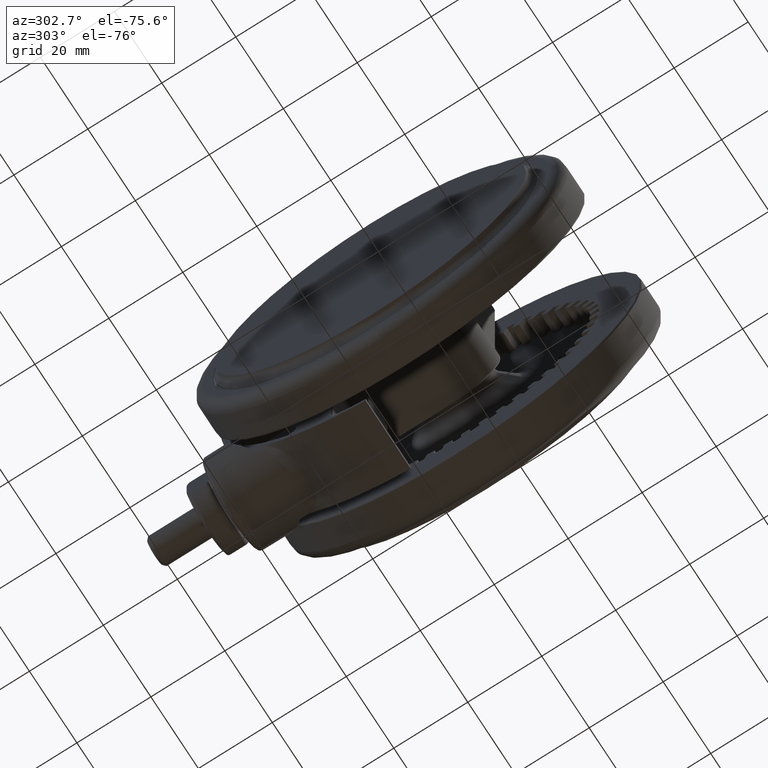
[diagram: clean part render]
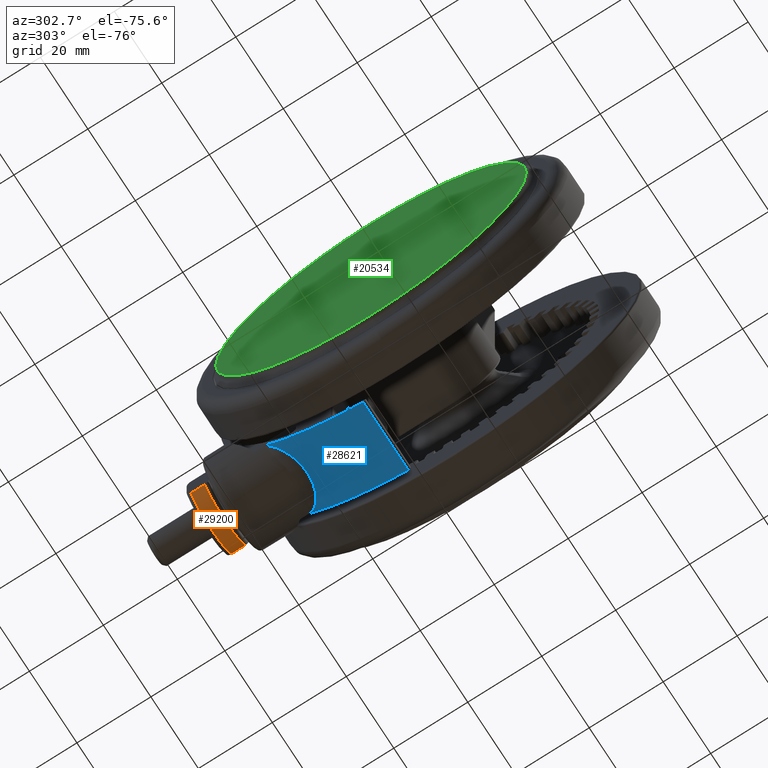
[diagram: same view with three faces highlighted in distinct colors, each labeled with its STEP entity id]
A machine part, auxiliary view with three faces highlighted in distinct colors.
Their STEP definitions:

[orange] entity #29200 — the highlighted cylindrical surface (partial cylindrical patch) has radius 10 mm, axis along (0, -1, -0).
#4144 = VECTOR ( 'NONE', #12329, 1000.000000000000000 ) ;
#4283 = EDGE_CURVE ( 'NONE', #16345, #5206, #19447, .T. ) ;
#4938 = VERTEX_POINT ( 'NONE', #10709 ) ;
#5206 = VERTEX_POINT ( 'NONE', #21849 ) ;
#5424 = DIRECTION ( 'NONE',  ( -1.161330068381886000E-016, 1.000000000000000000, 4.413456915335259200E-017 ) ) ;
#5435 = ORIENTED_EDGE ( 'NONE', *, *, #4283, .T. ) ;
#5532 = EDGE_CURVE ( 'NONE', #16345, #4938, #24069, .T. ) ;
#6679 = CARTESIAN_POINT ( 'NONE',  ( 29.26782687642636200, 58.90000000000003400, -32.80000000000001100 ) ) ;
#6965 = CARTESIAN_POINT ( 'NONE',  ( 29.26782687642636600, 55.10000000000003700, -15.80000000000000800 ) ) ;
#7800 = DIRECTION ( 'NONE',  ( 1.161330068381886000E-016, -1.000000000000000000, -4.413456915335259200E-017 ) ) ;
#8379 = AXIS2_PLACEMENT_3D ( 'NONE', #27087, #31989, #19534 ) ;
#10709 = CARTESIAN_POINT ( 'NONE',  ( 29.26782687642636200, 55.10000000000003700, -32.80000000000001100 ) ) ;
#10863 = CARTESIAN_POINT ( 'NONE',  ( 29.26782687642636200, 60.00000000000003600, -15.80000000000000800 ) ) ;
#12329 = DIRECTION ( 'NONE',  ( 1.161330068381886000E-016, -1.000000000000000000, -4.413456915335259200E-017 ) ) ;
#12578 = AXIS2_PLACEMENT_3D ( 'NONE', #22770, #7800, #25304 ) ;
#14046 = ORIENTED_EDGE ( 'NONE', *, *, #22563, .T. ) ;
#15128 = VERTEX_POINT ( 'NONE', #6965 ) ;
#16345 = VERTEX_POINT ( 'NONE', #6679 ) ;
#17266 = FACE_OUTER_BOUND ( 'NONE', #22916, .T. ) ;
#19447 = CIRCLE ( 'NONE', #12578, 10.00000000000000200 ) ;
#19534 = DIRECTION ( 'NONE',  ( 0.0000000000000000000, 0.0000000000000000000, 1.000000000000000000 ) ) ;
#20394 = CARTESIAN_POINT ( 'NONE',  ( 23.99999999999999300, 55.10000000000003000, -24.30000000000000800 ) ) ;
#21849 = CARTESIAN_POINT ( 'NONE',  ( 29.26782687642636200, 58.90000000000003400, -15.80000000000000800 ) ) ;
#22563 = EDGE_CURVE ( 'NONE', #15128, #4938, #28055, .T. ) ;
#22770 = CARTESIAN_POINT ( 'NONE',  ( 23.99999999999999300, 58.90000000000003400, -24.30000000000000800 ) ) ;
#22903 = DIRECTION ( 'NONE',  ( 0.0000000000000000000, 0.0000000000000000000, -1.000000000000000000 ) ) ;
#22916 = EDGE_LOOP ( 'NONE', ( #24525, #5435, #30853, #14046 ) ) ;
#23416 = VECTOR ( 'NONE', #28341, 1000.000000000000000 ) ;
#23696 = AXIS2_PLACEMENT_3D ( 'NONE', #20394, #5424, #22903 ) ;
#24069 = LINE ( 'NONE', #29796, #4144 ) ;
#24525 = ORIENTED_EDGE ( 'NONE', *, *, #5532, .F. ) ;
#25304 = DIRECTION ( 'NONE',  ( 0.0000000000000000000, 0.0000000000000000000, -1.000000000000000000 ) ) ;
#27087 = CARTESIAN_POINT ( 'NONE',  ( 23.99999999999999300, 60.00000000000003600, -24.30000000000000800 ) ) ;
#28055 = CIRCLE ( 'NONE', #23696, 10.00000000000000200 ) ;
#28341 = DIRECTION ( 'NONE',  ( 1.161330068381886000E-016, -1.000000000000000000, -4.413456915335259200E-017 ) ) ;
#28600 = EDGE_CURVE ( 'NONE', #5206, #15128, #30829, .T. ) ;
#29200 = ADVANCED_FACE ( 'NONE', ( #17266 ), #29756, .T. ) ;
#29756 = CYLINDRICAL_SURFACE ( 'NONE', #8379, 10.00000000000000000 ) ;
#29796 = CARTESIAN_POINT ( 'NONE',  ( 29.26782687642636200, 60.00000000000003600, -32.80000000000001100 ) ) ;
#30829 = LINE ( 'NONE', #10863, #23416 ) ;
#30853 = ORIENTED_EDGE ( 'NONE', *, *, #28600, .T. ) ;
#31989 = DIRECTION ( 'NONE',  ( 1.161330068381886000E-016, -1.000000000000000000, -4.413456915335259200E-017 ) ) ;

[blue] entity #28621 — the highlighted cylindrical surface (partial cylindrical patch) has radius 50 mm, axis along (-1, 0, 0).
#419 = EDGE_CURVE ( 'NONE', #23087, #8622, #7089, .T. ) ;
#472 = CARTESIAN_POINT ( 'NONE',  ( 48.63193178670999800, 11.61616161616162100, -14.80000000000001000 ) ) ;
#617 = CARTESIAN_POINT ( 'NONE',  ( 34.31274652645884500, 36.36806705901607700, -32.74709739643780900 ) ) ;
#735 = CARTESIAN_POINT ( 'NONE',  ( 36.89351901911391700, 33.74743635570671800, -29.10060216485628000 ) ) ;
#843 = CARTESIAN_POINT ( 'NONE',  ( 37.67419706141925700, 32.87332735489169300, -23.03472540845762900 ) ) ;
#951 = CARTESIAN_POINT ( 'NONE',  ( 36.99640792677027400, 33.63555748422316300, -19.75708853572382000 ) ) ;
#1056 = CARTESIAN_POINT ( 'NONE',  ( 34.76202998411583400, 35.93902763542729400, -16.23101237620990700 ) ) ;
#1091 = DIRECTION ( 'NONE',  ( -1.133627716667516000E-033, -4.413456915335259200E-017, 1.000000000000000000 ) ) ;
#3125 = CARTESIAN_POINT ( 'NONE',  ( 34.99755747381399100, 35.71197130703192400, -32.16728140512346800 ) ) ;
#3224 = CARTESIAN_POINT ( 'NONE',  ( 37.10962394447585000, 33.50939683336969200, -28.47004904455612400 ) ) ;
#3337 = CARTESIAN_POINT ( 'NONE',  ( 37.63603152371469200, 32.91700591041627200, -22.66235478231261200 ) ) ;
#3463 = CARTESIAN_POINT ( 'NONE',  ( 36.59406196103343900, 34.07202084390348100, -18.79451486379904100 ) ) ;
#3566 = CARTESIAN_POINT ( 'NONE',  ( 34.49252833873738000, 36.19767272266086200, -15.99937894774339900 ) ) ;
#4128 = CARTESIAN_POINT ( 'NONE',  ( -1.076946330834140200E-032, 1.315445069019957500E-015, -14.80000000000001000 ) ) ;
#4678 = CIRCLE ( 'NONE', #23794, 50.00000000000000000 ) ;
#4693 = ORIENTED_EDGE ( 'NONE', *, *, #25160, .F. ) ;
#5299 = EDGE_LOOP ( 'NONE', ( #29401, #12362, #4693, #20409 ) ) ;
#5524 = CARTESIAN_POINT ( 'NONE',  ( 32.91906115883919900, 37.63746394867963100, -33.55523827998324300 ) ) ;
#5632 = CARTESIAN_POINT ( 'NONE',  ( 35.58246277230635700, 35.12728478890685600, -31.48419502741859300 ) ) ;
#5749 = CARTESIAN_POINT ( 'NONE',  ( 37.23429283232788100, 33.37077632623412200, -28.04583883585296200 ) ) ;
#5861 = CARTESIAN_POINT ( 'NONE',  ( 37.58251479947406200, 32.97813730034763300, -22.22206409547560600 ) ) ;
#5959 = CARTESIAN_POINT ( 'NONE',  ( 36.33370454684151000, 34.34932155627424100, -18.28148012701952400 ) ) ;
#6070 = CARTESIAN_POINT ( 'NONE',  ( 34.38569670367532200, 36.29910101383204300, -15.91452357569802700 ) ) ;
#6644 = DIRECTION ( 'NONE',  ( 1.000000000000000000, 0.0000000000000000000, 0.0000000000000000000 ) ) ;
#7089 = B_SPLINE_CURVE_WITH_KNOTS ( 'NONE', 3,
 ( #8033, #15471, #5524, #25549, #10550, #28050, #13070, #30525, #15582, #617, #18088, #3125, #20620, #5632, #23118, #8163, #25637, #10663, #28150, #13180, #30629, #15689, #735, #18188, #3224, #20719, #5749, #23229, #8254, #25757, #10768, #28253, #13275, #30749, #15790, #843, #18300, #3337, #20824, #5861, #23332, #8359, #25862, #10883, #28354, #13386, #30854, #15907, #951, #18401, #3463, #20928, #5959, #23438, #8465, #25970, #10986, #28467, #13494, #30963, #16009, #1056, #18509, #3566, #21040, #6070, #23542, #8574, #26071, #11100 ),
 .UNSPECIFIED., .F., .F.,
 ( 4, 2, 1, 1, 1, 2, 2, 2, 2, 1, 1, 2, 2, 2, 2, 1, 1, 2, 2, 2, 2, 1, 2, 2, 2, 1, 1, 2, 2, 2, 2, 1, 1, 2, 2, 2, 2, 1, 1, 2, 2, 4 ),
 ( 0.0000000000000000000, 0.06250000000000850700, 0.09375000000001301700, 0.1093750000000149900, 0.1171875000000159700, 0.1210937500000162200, 0.1250000000000164600, 0.1875000000000103500, 0.2187500000000075500, 0.2343750000000059100, 0.2421875000000051600, 0.2460937500000049700, 0.2500000000000047700, 0.3124999999999984500, 0.3437499999999954500, 0.3593749999999937300, 0.3671874999999930600, 0.3710937499999925600, 0.3749999999999920100, 0.4999999999999773500, 0.5312499999999736900, 0.5468749999999720200, 0.5546874999999712500, 0.5624999999999704700, 0.5937499999999679100, 0.6093749999999668000, 0.6171874999999660300, 0.6210937499999656900, 0.6249999999999654700, 0.6874999999999674700, 0.7187499999999684700, 0.7343749999999692500, 0.7421874999999700200, 0.7460937499999702500, 0.7499999999999703600, 0.8124999999999763500, 0.8437499999999793500, 0.8593749999999811300, 0.8671874999999822400, 0.8710937499999831200, 0.8749999999999840100, 1.000000000000000000 ),
 .UNSPECIFIED. ) ;
#8033 = CARTESIAN_POINT ( 'NONE',  ( 32.12403840463595400, 38.31509045503450000, -33.80000000000001100 ) ) ;
#8123 = VECTOR ( 'NONE', #31023, 1000.000000000000000 ) ;
#8163 = CARTESIAN_POINT ( 'NONE',  ( 35.88639470079879600, 34.81640338780152200, -31.06024271980778200 ) ) ;
#8254 = CARTESIAN_POINT ( 'NONE',  ( 37.27868678258919700, 33.32115974008784300, -27.87941658467048400 ) ) ;
#8359 = CARTESIAN_POINT ( 'NONE',  ( 37.45842529910191800, 33.11899733783361900, -21.50681829035518800 ) ) ;
#8465 = CARTESIAN_POINT ( 'NONE',  ( 36.17699705539703100, 34.51413370293398200, -18.00630928014398100 ) ) ;
#8574 = CARTESIAN_POINT ( 'NONE',  ( 33.67350113742060100, 36.97218770086729500, -15.36742604078901000 ) ) ;
#8622 = VERTEX_POINT ( 'NONE', #15775 ) ;
#8893 = LINE ( 'NONE', #28526, #8123 ) ;
#9782 = EDGE_CURVE ( 'NONE', #25886, #23087, #4678, .T. ) ;
#10550 = CARTESIAN_POINT ( 'NONE',  ( 33.73991292827052700, 36.90143508624567700, -33.14026829706006100 ) ) ;
#10663 = CARTESIAN_POINT ( 'NONE',  ( 36.04674763137578700, 34.65014434421857500, -30.81094728902933600 ) ) ;
#10768 = CARTESIAN_POINT ( 'NONE',  ( 37.58501714429105800, 32.97809629345242400, -26.68190859808844100 ) ) ;
#10883 = CARTESIAN_POINT ( 'NONE',  ( 37.35927654058051000, 33.23079222800404900, -21.04918661681717800 ) ) ;
#10967 = DIRECTION ( 'NONE',  ( -1.000000000000000000, 0.0000000000000000000, 0.0000000000000000000 ) ) ;
#10986 = CARTESIAN_POINT ( 'NONE',  ( 36.12770660375936400, 34.56572447908637700, -17.92322606596894400 ) ) ;
#11100 = CARTESIAN_POINT ( 'NONE',  ( 32.12403840463595400, 38.31509045503445100, -14.80000000000000800 ) ) ;
#12290 = VERTEX_POINT ( 'NONE', #472 ) ;
#12362 = ORIENTED_EDGE ( 'NONE', *, *, #419, .T. ) ;
#13070 = CARTESIAN_POINT ( 'NONE',  ( 34.18871064047896600, 36.48476154391279600, -32.83915778884531300 ) ) ;
#13180 = CARTESIAN_POINT ( 'NONE',  ( 36.09326724600048700, 34.60168511526683900, -30.73579949498948200 ) ) ;
#13275 = CARTESIAN_POINT ( 'NONE',  ( 37.72742056007388100, 32.81221933876854300, -24.00770164411129000 ) ) ;
#13386 = CARTESIAN_POINT ( 'NONE',  ( 37.31689872523966800, 33.27835986008985000, -20.87483004962699000 ) ) ;
#13478 = DIRECTION ( 'NONE',  ( 1.133627716667516000E-033, 4.413456915335259200E-017, -1.000000000000000000 ) ) ;
#13494 = CARTESIAN_POINT ( 'NONE',  ( 35.59718382081841500, 35.11429071728033300, -17.12017626975689000 ) ) ;
#15194 = CYLINDRICAL_SURFACE ( 'NONE', #20302, 50.00000000000000000 ) ;
#15219 = CARTESIAN_POINT ( 'NONE',  ( 32.12403840463595400, 38.31509045503450000, -33.80000000000001100 ) ) ;
#15471 = CARTESIAN_POINT ( 'NONE',  ( 32.53170146418551700, 37.97329865379914100, -33.69623421304554300 ) ) ;
#15582 = CARTESIAN_POINT ( 'NONE',  ( 34.29288990463558000, 36.38679042535780900, -32.76208389114430700 ) ) ;
#15689 = CARTESIAN_POINT ( 'NONE',  ( 36.59771754745315800, 34.06892858752119900, -29.82475463302119300 ) ) ;
#15775 = CARTESIAN_POINT ( 'NONE',  ( 32.12403840463595400, 38.31509045503445100, -14.80000000000000800 ) ) ;
#15790 = CARTESIAN_POINT ( 'NONE',  ( 37.69123459779177700, 32.85378250809321100, -23.25875986143018500 ) ) ;
#15907 = CARTESIAN_POINT ( 'NONE',  ( 37.16268891530255300, 33.45110870720792200, -20.26802367117650400 ) ) ;
#16009 = CARTESIAN_POINT ( 'NONE',  ( 35.00197835032136600, 35.70589945023003500, -16.45673910144654800 ) ) ;
#16040 = CARTESIAN_POINT ( 'NONE',  ( 1.076946330834140200E-032, 2.154001882933656900E-015, -33.80000000000001100 ) ) ;
#16226 = EDGE_CURVE ( 'NONE', #12290, #25886, #8893, .T. ) ;
#17760 = CIRCLE ( 'NONE', #18510, 50.00000000000000000 ) ;
#18088 = CARTESIAN_POINT ( 'NONE',  ( 34.67847468078797800, 36.02259843665415700, -32.46738158164354400 ) ) ;
#18188 = CARTESIAN_POINT ( 'NONE',  ( 36.98444995232171100, 33.64767337381374500, -28.85244482626061200 ) ) ;
#18300 = CARTESIAN_POINT ( 'NONE',  ( 37.65198884829325000, 32.89875199347876800, -22.81123102367819700 ) ) ;
#18401 = CARTESIAN_POINT ( 'NONE',  ( 36.70046858691914300, 33.95727959054109800, -19.03021689853185800 ) ) ;
#18509 = CARTESIAN_POINT ( 'NONE',  ( 34.63963226216026900, 36.05716634665797900, -16.12144361543154500 ) ) ;
#18510 = AXIS2_PLACEMENT_3D ( 'NONE', #4128, #21604, #6644 ) ;
#18544 = DIRECTION ( 'NONE',  ( 1.000000000000000000, 0.0000000000000000000, 0.0000000000000000000 ) ) ;
#20302 = AXIS2_PLACEMENT_3D ( 'NONE', #28451, #13478, #10967 ) ;
#20409 = ORIENTED_EDGE ( 'NONE', *, *, #16226, .T. ) ;
#20620 = CARTESIAN_POINT ( 'NONE',  ( 35.44067592291738600, 35.27041211934644600, -31.66187379056688300 ) ) ;
#20719 = CARTESIAN_POINT ( 'NONE',  ( 37.16940470234046500, 33.44309982805506100, -28.27631121025110200 ) ) ;
#20824 = CARTESIAN_POINT ( 'NONE',  ( 37.62730254867106100, 32.92698418947752300, -22.58655718072868600 ) ) ;
#20928 = CARTESIAN_POINT ( 'NONE',  ( 36.42248523555941400, 34.25506623937974400, -18.45084457819656300 ) ) ;
#21040 = CARTESIAN_POINT ( 'NONE',  ( 34.42855383075278300, 36.25845492202457600, -15.94830099442417600 ) ) ;
#21604 = DIRECTION ( 'NONE',  ( -1.133627716667516000E-033, -4.413456915335259200E-017, 1.000000000000000000 ) ) ;
#23087 = VERTEX_POINT ( 'NONE', #15219 ) ;
#23118 = CARTESIAN_POINT ( 'NONE',  ( 35.78652116575482700, 34.91896835888577800, -31.20386254525206800 ) ) ;
#23229 = CARTESIAN_POINT ( 'NONE',  ( 37.26106686952010700, 33.34086187254300200, -27.94611248231610600 ) ) ;
#23332 = CARTESIAN_POINT ( 'NONE',  ( 37.53810011567075800, 33.02873721342054800, -21.93390471861958300 ) ) ;
#23438 = CARTESIAN_POINT ( 'NONE',  ( 36.22481259833311600, 34.46399058006326800, -18.08821197765529500 ) ) ;
#23542 = CARTESIAN_POINT ( 'NONE',  ( 34.36343508477814600, 36.32017561434545900, -15.89721210537101500 ) ) ;
#23794 = AXIS2_PLACEMENT_3D ( 'NONE', #16040, #1091, #18544 ) ;
#25160 = EDGE_CURVE ( 'NONE', #12290, #8622, #17760, .T. ) ;
#25549 = CARTESIAN_POINT ( 'NONE',  ( 33.47112494289950000, 37.14491371740820100, -33.28789916122808300 ) ) ;
#25637 = CARTESIAN_POINT ( 'NONE',  ( 35.99919553597424500, 34.69959086388171700, -30.88664248415763700 ) ) ;
#25757 = CARTESIAN_POINT ( 'NONE',  ( 37.28692987240628300, 33.31193546800764700, -27.84773115021839700 ) ) ;
#25862 = CARTESIAN_POINT ( 'NONE',  ( 37.41532364989380700, 33.16771651198349200, -21.29456323547790900 ) ) ;
#25886 = VERTEX_POINT ( 'NONE', #32233 ) ;
#25970 = CARTESIAN_POINT ( 'NONE',  ( 36.14486403006561200, 34.54778351006444100, -17.95191337277179500 ) ) ;
#26071 = CARTESIAN_POINT ( 'NONE',  ( 32.93632475846038700, 37.63405544465285100, -15.00704004672171600 ) ) ;
#28050 = CARTESIAN_POINT ( 'NONE',  ( 34.04114394597100800, 36.62272535006732000, -32.94360000548079600 ) ) ;
#28150 = CARTESIAN_POINT ( 'NONE',  ( 36.07827384832427200, 34.61731754484448200, -30.76019602691370700 ) ) ;
#28253 = CARTESIAN_POINT ( 'NONE',  ( 37.72667130563738200, 32.81308082199323900, -25.51326617933148800 ) ) ;
#28354 = CARTESIAN_POINT ( 'NONE',  ( 37.33401568358185300, 33.25915570764683300, -20.94450826854032500 ) ) ;
#28451 = CARTESIAN_POINT ( 'NONE',  ( -1.076946330834140200E-032, 1.315445069019957500E-015, -14.80000000000001000 ) ) ;
#28467 = CARTESIAN_POINT ( 'NONE',  ( 35.86658510469239800, 34.83840316451788500, -17.49143007599163400 ) ) ;
#28526 = CARTESIAN_POINT ( 'NONE',  ( 48.63193178670999800, 11.61616161616162100, -14.80000000000001000 ) ) ;
#28621 = ADVANCED_FACE ( 'NONE', ( #29257 ), #15194, .T. ) ;
#29257 = FACE_OUTER_BOUND ( 'NONE', #5299, .T. ) ;
#29401 = ORIENTED_EDGE ( 'NONE', *, *, #9782, .T. ) ;
#30525 = CARTESIAN_POINT ( 'NONE',  ( 34.25130445586921700, 36.42593799124081500, -32.79308796653460000 ) ) ;
#30629 = CARTESIAN_POINT ( 'NONE',  ( 36.36986337231447700, 34.31289385851398100, -30.28043021496844000 ) ) ;
#30749 = CARTESIAN_POINT ( 'NONE',  ( 37.71843996565867500, 32.82255396730225500, -23.70754885829950400 ) ) ;
#30854 = CARTESIAN_POINT ( 'NONE',  ( 37.30790920989741000, 33.28843755603168100, -20.83889342433576900 ) ) ;
#30963 = CARTESIAN_POINT ( 'NONE',  ( 35.15548171894985800, 35.55468087673249000, -16.61600918984420600 ) ) ;
#31023 = DIRECTION ( 'NONE',  ( 1.133627716667516000E-033, 4.413456915335259200E-017, -1.000000000000000000 ) ) ;
#32233 = CARTESIAN_POINT ( 'NONE',  ( 48.63193178670999800, 11.61616161616162100, -33.80000000000001100 ) ) ;

[green] entity #20534 — the highlighted planar face has unit normal (1, -0, -0).
#2468 = DIRECTION ( 'NONE',  ( -1.000000000000000000, 4.413456915335259200E-017, 0.0000000000000000000 ) ) ;
#4007 = FACE_OUTER_BOUND ( 'NONE', #8681, .T. ) ;
#6093 = VERTEX_POINT ( 'NONE', #12185 ) ;
#6135 = EDGE_CURVE ( 'NONE', #6093, #8075, #8828, .T. ) ;
#7599 = AXIS2_PLACEMENT_3D ( 'NONE', #32393, #17432, #2468 ) ;
#8075 = VERTEX_POINT ( 'NONE', #25666 ) ;
#8681 = EDGE_LOOP ( 'NONE', ( #21231, #24441 ) ) ;
#8828 = CIRCLE ( 'NONE', #7599, 42.00000000000000000 ) ;
#9149 = DIRECTION ( 'NONE',  ( -8.142324776845440500E-034, 8.826913830670518300E-017, -1.000000000000000000 ) ) ;
#12185 = CARTESIAN_POINT ( 'NONE',  ( 42.00000000000000000, 5.024588127954881500E-015, -48.59999999999990900 ) ) ;
#13899 = AXIS2_PLACEMENT_3D ( 'NONE', #24123, #9149, #26652 ) ;
#15054 = EDGE_CURVE ( 'NONE', #8075, #6093, #18844, .T. ) ;
#17222 = DIRECTION ( 'NONE',  ( 1.000000000000000000, -4.413456915335259200E-017, -4.709952866388670900E-033 ) ) ;
#17432 = DIRECTION ( 'NONE',  ( -8.142324776845440500E-034, 8.826913830670518300E-017, -1.000000000000000000 ) ) ;
#18844 = CIRCLE ( 'NONE', #13899, 42.00000000000000000 ) ;
#20534 = ADVANCED_FACE ( 'NONE', ( #4007 ), #32185, .F. ) ;
#21231 = ORIENTED_EDGE ( 'NONE', *, *, #15054, .T. ) ;
#24123 = CARTESIAN_POINT ( 'NONE',  ( 0.0000000000000000000, 1.734723475976807100E-015, -48.59999999999990900 ) ) ;
#24441 = ORIENTED_EDGE ( 'NONE', *, *, #6135, .T. ) ;
#24674 = DIRECTION ( 'NONE',  ( 8.142324776845467900E-034, -8.826913830670518300E-017, 1.000000000000000000 ) ) ;
#25342 = AXIS2_PLACEMENT_3D ( 'NONE', #29662, #24674, #17222 ) ;
#25666 = CARTESIAN_POINT ( 'NONE',  ( -42.00000000000000000, 3.588375380417616000E-015, -48.59999999999990900 ) ) ;
#26652 = DIRECTION ( 'NONE',  ( -1.000000000000000000, 4.413456915335259200E-017, 0.0000000000000000000 ) ) ;
#29662 = CARTESIAN_POINT ( 'NONE',  ( 0.0000000000000000000, 1.734723475976807100E-015, -48.59999999999990900 ) ) ;
#32185 = PLANE ( 'NONE',  #25342 ) ;
#32393 = CARTESIAN_POINT ( 'NONE',  ( 0.0000000000000000000, 1.734723475976807100E-015, -48.59999999999990900 ) ) ;